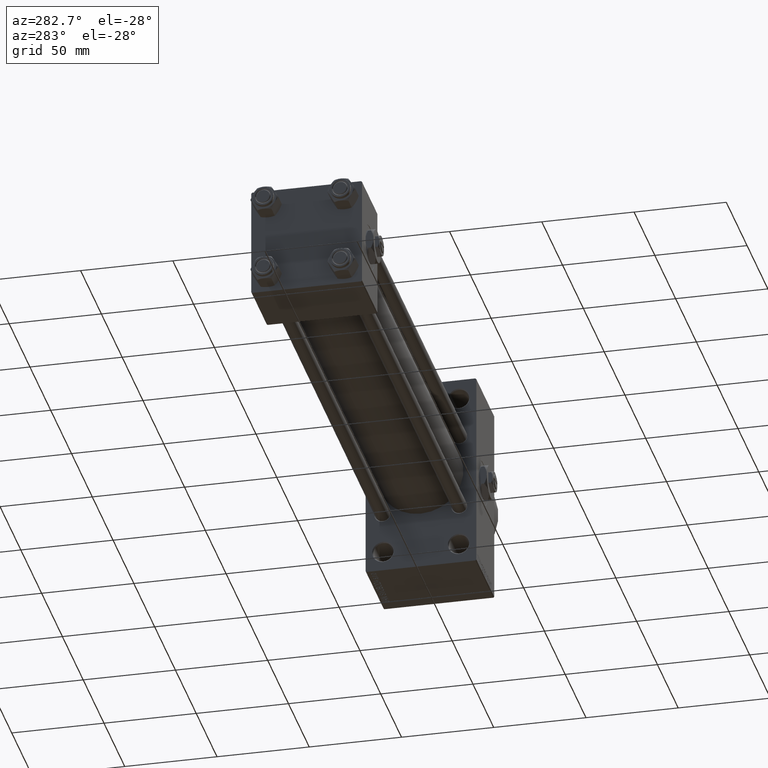
[diagram: clean part render]
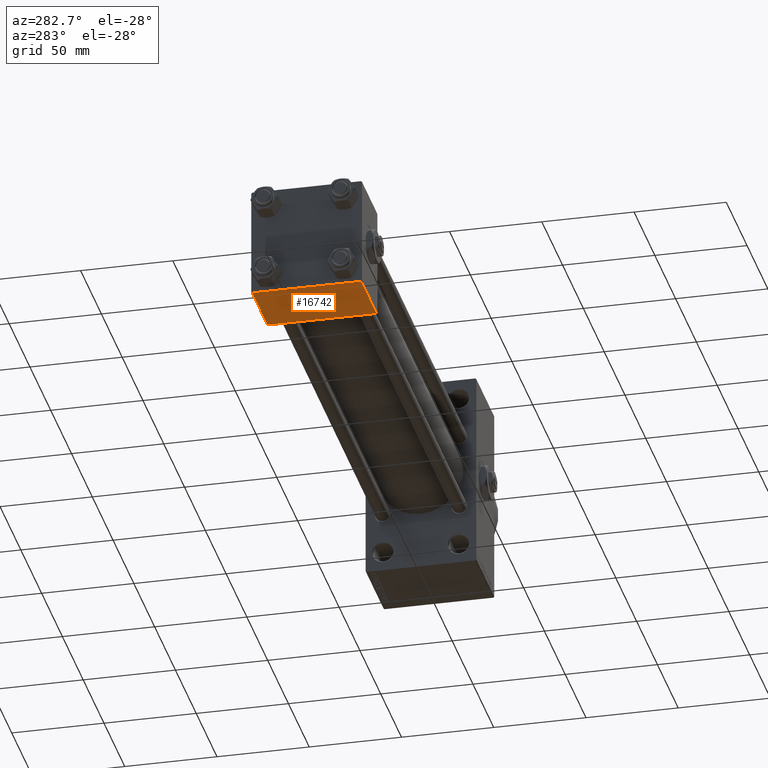
[diagram: same view with one face highlighted and labeled with its STEP entity id]
A machine part, auxiliary view. The second image highlights one B-rep face of the part: STEP entity #16742.
In plain terms, the highlighted planar face has unit normal (0, 0, -1).
Its self-contained STEP definition (entity closure, byte-faithful):
#40 = DIRECTION ( 'NONE',  ( 0.000000000000000000, -1.000000000000000000, -1.156482317317871725E-16 ) ) ;
#551 = DIRECTION ( 'NONE',  ( 0.000000000000000000, -1.000000000000000000, -1.156482317317871725E-16 ) ) ;
#2392 = CARTESIAN_POINT ( 'NONE',  ( 0.000000000000000000, -29.50000000000001066, -30.00000000000000711 ) ) ;
#2421 = VECTOR ( 'NONE', #40768, 1000.000000000000000 ) ;
#3772 = LINE ( 'NONE', #34160, #37401 ) ;
#4011 = EDGE_CURVE ( 'NONE', #19714, #22394, #29522, .T. ) ;
#5197 = ORIENTED_EDGE ( 'NONE', *, *, #4011, .T. ) ;
#7307 = CARTESIAN_POINT ( 'NONE',  ( 37.00000000000000000, 29.49999999999997868, -30.00000000000000000 ) ) ;
#9449 = VECTOR ( 'NONE', #30701, 1000.000000000000000 ) ;
#12471 = CARTESIAN_POINT ( 'NONE',  ( 37.00000000000000000, -29.50000000000000000, -30.00000000000000711 ) ) ;
#15524 = LINE ( 'NONE', #7307, #9449 ) ;
#15902 = VERTEX_POINT ( 'NONE', #49145 ) ;
#16742 = ADVANCED_FACE ( 'NONE', ( #20528 ), #24250, .T. ) ;
#19491 = LINE ( 'NONE', #20231, #39172 ) ;
#19714 = VERTEX_POINT ( 'NONE', #12471 ) ;
#20044 = DIRECTION ( 'NONE',  ( 0.000000000000000000, 1.000000000000000000, 1.156482317317871725E-16 ) ) ;
#20231 = CARTESIAN_POINT ( 'NONE',  ( 37.00000000000000000, 29.99999999999999289, -30.00000000000000000 ) ) ;
#20528 = FACE_OUTER_BOUND ( 'NONE', #42927, .T. ) ;
#22394 = VERTEX_POINT ( 'NONE', #33854 ) ;
#23584 = EDGE_CURVE ( 'NONE', #15902, #19714, #19491, .T. ) ;
#24250 = PLANE ( 'NONE',  #27787 ) ;
#27787 = AXIS2_PLACEMENT_3D ( 'NONE', #42958, #39467, #20044 ) ;
#29522 = LINE ( 'NONE', #2392, #2421 ) ;
#30701 = DIRECTION ( 'NONE',  ( 1.000000000000000000, 0.000000000000000000, 0.000000000000000000 ) ) ;
#33854 = CARTESIAN_POINT ( 'NONE',  ( 0.000000000000000000, -29.50000000000000000, -30.00000000000000711 ) ) ;
#34160 = CARTESIAN_POINT ( 'NONE',  ( 0.000000000000000000, 29.99999999999999289, -30.00000000000000000 ) ) ;
#37401 = VECTOR ( 'NONE', #40, 1000.000000000000000 ) ;
#38704 = ORIENTED_EDGE ( 'NONE', *, *, #23584, .T. ) ;
#39172 = VECTOR ( 'NONE', #551, 1000.000000000000000 ) ;
#39467 = DIRECTION ( 'NONE',  ( 0.000000000000000000, 1.156482317317871725E-16, -1.000000000000000000 ) ) ;
#40768 = DIRECTION ( 'NONE',  ( -1.000000000000000000, 0.000000000000000000, 0.000000000000000000 ) ) ;
#42467 = ORIENTED_EDGE ( 'NONE', *, *, #43673, .T. ) ;
#42927 = EDGE_LOOP ( 'NONE', ( #47414, #42467, #38704, #5197 ) ) ;
#42958 = CARTESIAN_POINT ( 'NONE',  ( 37.00000000000000000, 29.99999999999999289, -30.00000000000000000 ) ) ;
#43673 = EDGE_CURVE ( 'NONE', #46396, #15902, #15524, .T. ) ;
#44045 = CARTESIAN_POINT ( 'NONE',  ( 0.000000000000000000, 29.49999999999997868, -30.00000000000000000 ) ) ;
#46048 = EDGE_CURVE ( 'NONE', #46396, #22394, #3772, .T. ) ;
#46396 = VERTEX_POINT ( 'NONE', #44045 ) ;
#47414 = ORIENTED_EDGE ( 'NONE', *, *, #46048, .F. ) ;
#49145 = CARTESIAN_POINT ( 'NONE',  ( 37.00000000000000000, 29.49999999999997868, -30.00000000000000000 ) ) ;